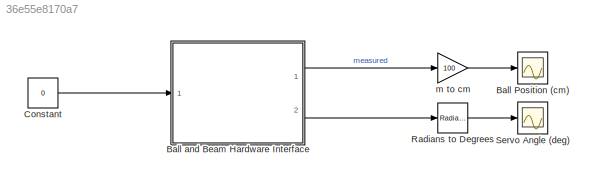
MODEL slx_36e55e8170a7
KIND model
CONFIG AbsTol = 1e-6
CONFIG EnableMultiTasking = on
CONFIG FixedStep = 0.002
CONFIG MaxStep = auto
CONFIG MinStep = auto
CONFIG RelTol = 1e-3
CONFIG SampleTimeConstraint = Unconstrained
CONFIG Solver = ode4
CONFIG SolverName = ode4
CONFIG StartTime = 0.0
CONFIG StopTime = 90
BLOCK [Scope] Ball Position (cm)
  NumInputPorts = 1
  Ports = [1]
  ScopeSpecificationString = Simulink.scopes.TimeScopeBlockCfg('CurrentConfiguration', extmgr.ConfigurationSet(extmgr.Configuration('Core','General UI',true),extmgr.Configuration('Core','Source UI',true),extmgr.Configuration('Sources','WiredSimulink',true,'DataLoggingVariableName','data_x','DataLogging',true,'DataLoggingMaxPoints','12500','DataLoggingSaveFormat','StructureWithTime'),extmgr.Configuration('Visuals','Time Domain...<+1539ch>
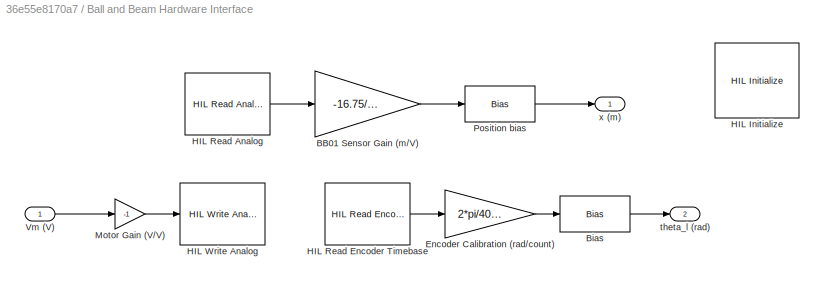
BLOCK [SubSystem] Ball and Beam Hardware Interface
  Ports = [1, 2]
  RequestExecContextInheritance = off
  Variant = off
BLOCK [Gain] Ball and Beam Hardware Interface/BB01 Sensor Gain (m//V)
  Gain = -16.75/10*0.0254
  OutDataTypeStr = Inherit: Inherit via internal rule
  ParamDataTypeStr = Inherit: Inherit via internal rule
  SaturateOnIntegerOverflow = off
BLOCK [Bias] Ball and Beam Hardware Interface/Bias
  Bias = -56*pi/180
  SaturateOnIntegerOverflow = off
BLOCK [Gain] Ball and Beam Hardware Interface/Encoder Calibration (rad//count)
  Gain = 2*pi/4096
BLOCK [Reference] Ball and Beam Hardware Interface/HIL Initialize  REF=quarc_library/Data Acquisition/Generic/Configuration/HIL Initialize
  AttributesFormatString = %<object_name> (%<board_type>-%<board_number>)
  Ports = []
  SourceBlock = quarc_library/Data Acquisition/Generic/Configuration/HIL Initialize
  SourceType = HIL Initialize
  UserDataPersistent = on
BLOCK [Reference] Ball and Beam Hardware Interface/HIL Read Analog  REF=quarc_library/Data Acquisition/Generic/Immediate I//O/HIL Read Analog
  AttributesFormatString = (%<object_name>)
  Ports = [0, 1]
  SourceBlock = quarc_library/Data Acquisition/Generic/Immediate I//O/HIL Read Analog
  SourceType = HIL Read Analog
  UserDataPersistent = on
BLOCK [Reference] Ball and Beam Hardware Interface/HIL Read Encoder Timebase  REF=quarc_library/Data Acquisition/Generic/Timebases/HIL Read Encoder
Timebase
  AttributesFormatString = (%<object_name>)
  Ports = [0, 1]
  SourceBlock = quarc_library/Data Acquisition/Generic/Timebases/HIL Read Encoder\nTimebase
  SourceType = HIL Read Encoder Timebase
  UserDataPersistent = on
BLOCK [Reference] Ball and Beam Hardware Interface/HIL Write Analog  REF=quarc_library/Data Acquisition/Generic/Immediate I//O/HIL Write Analog
  AttributesFormatString = (%<object_name>)
  Ports = [1]
  SourceBlock = quarc_library/Data Acquisition/Generic/Immediate I//O/HIL Write Analog
  SourceType = HIL Write Analog
  Tag = unassigned
  UserDataPersistent = on
BLOCK [Gain] Ball and Beam Hardware Interface/Motor Gain (V//V)
  Gain = -1
  OutDataTypeStr = Inherit: Inherit via internal rule
  ParamDataTypeStr = Inherit: Inherit via internal rule
  SaturateOnIntegerOverflow = off
BLOCK [Bias] Ball and Beam Hardware Interface/Position bias
  SaturateOnIntegerOverflow = off
BLOCK [Inport] Ball and Beam Hardware Interface/Vm (V)
  IconDisplay = Port number
BLOCK [Outport] Ball and Beam Hardware Interface/theta_l (rad)
  IconDisplay = Port number
  Port = 2
BLOCK [Outport] Ball and Beam Hardware Interface/x (m)
  IconDisplay = Port number
BLOCK [Constant] Constant
  Value = 0
BLOCK [Reference] Radians to Degrees  REF=simulink_extras/Transformations/Radians
to Degrees
  Ports = [1, 1]
  SourceBlock = simulink_extras/Transformations/Radians\nto Degrees
  SourceType = RadiansToDegrees
BLOCK [Scope] Servo Angle (deg)
  NumInputPorts = 1
  Ports = [1]
  ScopeSpecificationString = Simulink.scopes.TimeScopeBlockCfg('CurrentConfiguration', extmgr.ConfigurationSet(extmgr.Configuration('Core','General UI',true),extmgr.Configuration('Core','Source UI',true),extmgr.Configuration('Sources','WiredSimulink',true,'DataLoggingVariableName','data_theta_l','DataLogging',true,'DataLoggingLimitDataPoints',true,'DataLoggingMaxPoints','90000','DataLoggingSaveFormat','StructureWithTime'),ext...<+1610ch>
BLOCK [Gain] m to cm
  Gain = 100
  OutDataTypeStr = Inherit: Inherit via internal rule
  ParamDataTypeStr = Inherit: Inherit via internal rule
  SaturateOnIntegerOverflow = off
LINE Ball and Beam Hardware Interface/BB01 Sensor Gain (m//V):1 -> Ball and Beam Hardware Interface/Position bias:1
LINE Ball and Beam Hardware Interface/Bias:1 -> Ball and Beam Hardware Interface/theta_l (rad):1
LINE Ball and Beam Hardware Interface/Encoder Calibration (rad//count):1 -> Ball and Beam Hardware Interface/Bias:1
LINE Ball and Beam Hardware Interface/HIL Read Analog:1 -> Ball and Beam Hardware Interface/BB01 Sensor Gain (m//V):1
LINE Ball and Beam Hardware Interface/HIL Read Encoder Timebase:1 -> Ball and Beam Hardware Interface/Encoder Calibration (rad//count):1
LINE Ball and Beam Hardware Interface/Motor Gain (V//V):1 -> Ball and Beam Hardware Interface/HIL Write Analog:1
LINE Ball and Beam Hardware Interface/Position bias:1 -> Ball and Beam Hardware Interface/x (m):1
LINE Ball and Beam Hardware Interface/Vm (V):1 -> Ball and Beam Hardware Interface/Motor Gain (V//V):1
LINE Ball and Beam Hardware Interface:1 -> m to cm:1
LINE Ball and Beam Hardware Interface:2 -> Radians to Degrees:1
LINE Constant:1 -> Ball and Beam Hardware Interface:1
LINE Radians to Degrees:1 -> Servo Angle (deg):1
LINE m to cm:1 -> Ball Position (cm):1
